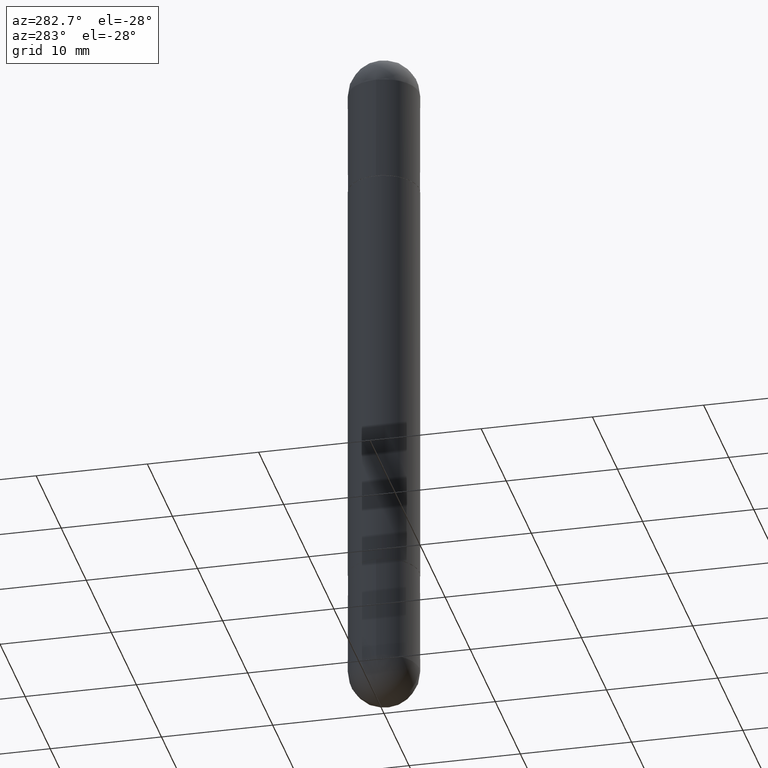
[diagram: clean part render]
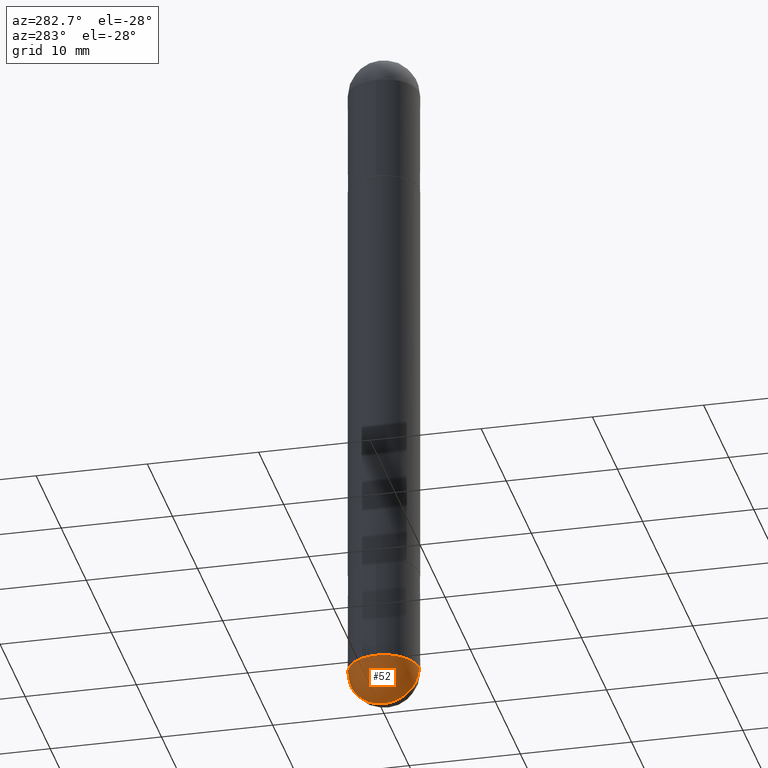
[diagram: same view with one face highlighted and labeled with its STEP entity id]
A machine part, auxiliary view. The second image highlights one B-rep face of the part: STEP entity #52.
In plain terms, the highlighted spherical surface has radius 3.175 mm.
Its self-contained STEP definition (entity closure, byte-faithful):
#37 = AXIS2_PLACEMENT_3D ( 'NONE', #815, #113, #487 ) ;
#52 = ADVANCED_FACE ( 'NONE', ( #482 ), #409, .T. ) ;
#63 = AXIS2_PLACEMENT_3D ( 'NONE', #385, #638, #642 ) ;
#70 = ORIENTED_EDGE ( 'NONE', *, *, #349, .F. ) ;
#83 = DIRECTION ( 'NONE',  ( -2.445468806185136597E-29, 3.491481338843145583E-15, 1.000000000000000000 ) ) ;
#111 = CIRCLE ( 'NONE', #298, 0.1250000000000001943 ) ;
#113 = DIRECTION ( 'NONE',  ( -2.445468806185136597E-29, 3.491481338843145583E-15, 1.000000000000000000 ) ) ;
#138 = EDGE_CURVE ( 'NONE', #461, #539, #221, .T. ) ;
#139 = DIRECTION ( 'NONE',  ( -7.105427357601000281E-15, -1.000000000000000000, 0.000000000000000000 ) ) ;
#221 = CIRCLE ( 'NONE', #272, 0.1250000000000000000 ) ;
#243 = VERTEX_POINT ( 'NONE', #484 ) ;
#247 = CIRCLE ( 'NONE', #63, 0.1250000000000001943 ) ;
#250 = DIRECTION ( 'NONE',  ( -1.000000000000000000, 7.105427357601001070E-15, -4.926315508542082329E-29 ) ) ;
#272 = AXIS2_PLACEMENT_3D ( 'NONE', #667, #83, #598 ) ;
#298 = AXIS2_PLACEMENT_3D ( 'NONE', #590, #250, #139 ) ;
#349 = EDGE_CURVE ( 'NONE', #539, #243, #557, .T. ) ;
#385 = CARTESIAN_POINT ( 'NONE',  ( 5.476868636775814291E-29, -8.766450547892521992E-15, -2.375000000000000000 ) ) ;
#409 = SPHERICAL_SURFACE ( 'NONE', #452, 0.1250000000000001943 ) ;
#445 = ORIENTED_EDGE ( 'NONE', *, *, #703, .T. ) ;
#452 = AXIS2_PLACEMENT_3D ( 'NONE', #668, #787, #732 ) ;
#461 = VERTEX_POINT ( 'NONE', #754 ) ;
#482 = FACE_OUTER_BOUND ( 'NONE', #809, .T. ) ;
#484 = CARTESIAN_POINT ( 'NONE',  ( -8.881784197000694204E-16, -0.1250000000000086320, -2.374999999999999556 ) ) ;
#487 = DIRECTION ( 'NONE',  ( 1.000000000000000000, -6.982962677686270655E-15, 0.000000000000000000 ) ) ;
#511 = ORIENTED_EDGE ( 'NONE', *, *, #640, .F. ) ;
#525 = VERTEX_POINT ( 'NONE', #647 ) ;
#539 = VERTEX_POINT ( 'NONE', #581 ) ;
#557 = CIRCLE ( 'NONE', #37, 0.1250000000000000000 ) ;
#581 = CARTESIAN_POINT ( 'NONE',  ( -0.1250000000000000000, -6.749437009019256592E-15, -2.375000000000000000 ) ) ;
#590 = CARTESIAN_POINT ( 'NONE',  ( 5.476868636775814291E-29, -8.766450547892521992E-15, -2.375000000000000000 ) ) ;
#598 = DIRECTION ( 'NONE',  ( 1.000000000000000000, -6.982962677686270655E-15, 0.000000000000000000 ) ) ;
#638 = DIRECTION ( 'NONE',  ( 1.000000000000000000, -6.982962677686265922E-15, 4.883557194083112340E-29 ) ) ;
#640 = EDGE_CURVE ( 'NONE', #525, #461, #247, .T. ) ;
#642 = DIRECTION ( 'NONE',  ( 6.982962677686265133E-15, 1.000000000000000000, 0.000000000000000000 ) ) ;
#647 = CARTESIAN_POINT ( 'NONE',  ( 5.787897026856327965E-29, -9.195231672753244292E-15, -2.500000000000000444 ) ) ;
#667 = CARTESIAN_POINT ( 'NONE',  ( 5.807988414689700538E-29, -8.292268179752471696E-15, -2.375000000000000000 ) ) ;
#668 = CARTESIAN_POINT ( 'NONE',  ( 5.476868636775814291E-29, -8.766450547892521992E-15, -2.375000000000000000 ) ) ;
#703 = EDGE_CURVE ( 'NONE', #525, #243, #111, .T. ) ;
#711 = ORIENTED_EDGE ( 'NONE', *, *, #138, .F. ) ;
#732 = DIRECTION ( 'NONE',  ( 6.982962677686265922E-15, 1.000000000000000000, -4.370956789862814839E-15 ) ) ;
#754 = CARTESIAN_POINT ( 'NONE',  ( 8.728703347108403340E-16, 0.1249999999999915623, -2.375000000000000888 ) ) ;
#787 = DIRECTION ( 'NONE',  ( -1.000000000000000000, 6.982962677686265922E-15, -4.883557194083112901E-29 ) ) ;
#809 = EDGE_LOOP ( 'NONE', ( #511, #445, #70, #711 ) ) ;
#815 = CARTESIAN_POINT ( 'NONE',  ( 5.807988414689700538E-29, -8.292268179752471696E-15, -2.375000000000000000 ) ) ;